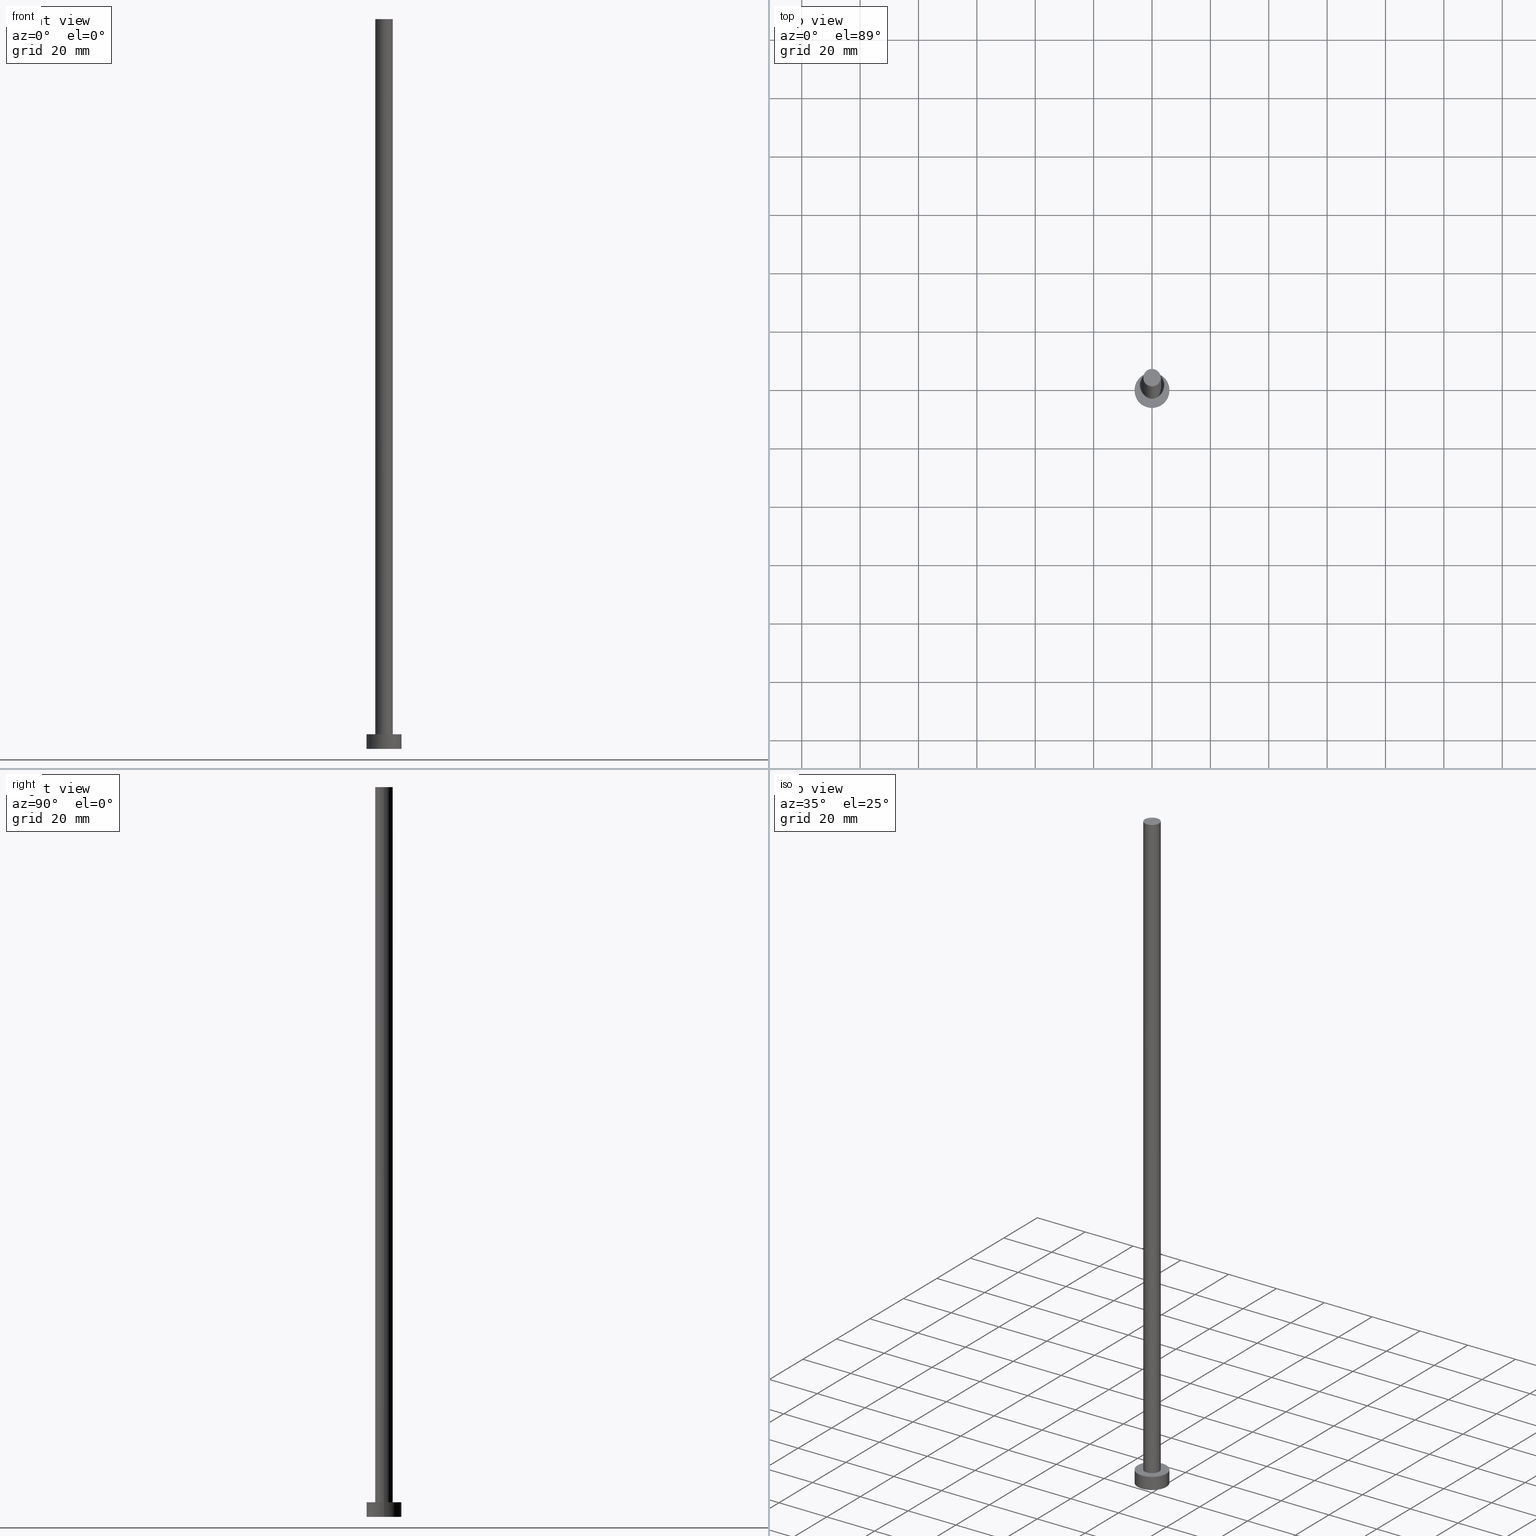
[diagram: canonical four-view strip — front | top / right | iso, engineering-drawing reading convention]
A machine part, canonical four-view strip (front | top / right | iso — engineering-drawing reading convention). The complete STEP part file that produces these views, byte-faithful:
ISO-10303-21;
HEADER;
FILE_DESCRIPTION (( 'STEP AP203' ),
    '1' );
FILE_NAME ('5daa.STEP',
    '2023-02-13T15:22:04',
    ( '' ),
    ( '' ),
    'SwSTEP 2.0',
    'SolidWorks 2019',
    '' );
FILE_SCHEMA (( 'CONFIG_CONTROL_DESIGN' ));
ENDSEC;

DATA;
#1 = EDGE_CURVE ( 'NONE', #52, #58, #91, .T. ) ;
#2 = ORIENTED_EDGE ( 'NONE', *, *, #105, .T. ) ;
#3 = VECTOR ( 'NONE', #83, 1000.000000000000000 ) ;
#4 = PERSON_AND_ORGANIZATION ( #132, #229 ) ;
#5 = ORIENTED_EDGE ( 'NONE', *, *, #234, .F. ) ;
#6 = ORIENTED_EDGE ( 'NONE', *, *, #192, .F. ) ;
#7 = PLANE ( 'NONE',  #184 ) ;
#8 = CARTESIAN_POINT ( 'NONE',  ( -6.000000000000000888, 0.000000000000000000, 5.000000000000000000 ) ) ;
#9 = CC_DESIGN_PERSON_AND_ORGANIZATION_ASSIGNMENT ( #215, #158, ( #211 ) ) ;
#10 = CARTESIAN_POINT ( 'NONE',  ( 0.000000000000000000, 0.000000000000000000, 5.000000000000000000 ) ) ;
#11 = DIRECTION ( 'NONE',  ( 1.000000000000000000, 0.000000000000000000, 0.000000000000000000 ) ) ;
#12 = DIRECTION ( 'NONE',  ( 0.000000000000000000, 0.000000000000000000, 1.000000000000000000 ) ) ;
#13 = ADVANCED_FACE ( 'NONE', ( #182 ), #221, .T. ) ;
#14 = EDGE_CURVE ( 'NONE', #214, #237, #124, .T. ) ;
#15 = DIRECTION ( 'NONE',  ( 1.000000000000000000, 0.000000000000000000, 0.000000000000000000 ) ) ;
#16 =( GEOMETRIC_REPRESENTATION_CONTEXT ( 3 ) GLOBAL_UNCERTAINTY_ASSIGNED_CONTEXT ( ( #168 ) ) GLOBAL_UNIT_ASSIGNED_CONTEXT ( ( #53, #194, #32 ) ) REPRESENTATION_CONTEXT ( 'NONE', 'WORKASPACE' ) );
#17 = ORIENTED_EDGE ( 'NONE', *, *, #110, .F. ) ;
#18 = DATE_TIME_ROLE ( 'classification_date' ) ;
#19 = EDGE_CURVE ( 'NONE', #138, #52, #185, .T. ) ;
#20 = ORIENTED_EDGE ( 'NONE', *, *, #203, .F. ) ;
#21 = APPROVAL_DATE_TIME ( #76, #216 ) ;
#22 = ORIENTED_EDGE ( 'NONE', *, *, #213, .F. ) ;
#23 = DATE_AND_TIME ( #102, #38 ) ;
#24 = ORIENTED_EDGE ( 'NONE', *, *, #14, .F. ) ;
#25 = COORDINATED_UNIVERSAL_TIME_OFFSET ( 1, 0, .AHEAD. ) ;
#26 = ORIENTED_EDGE ( 'NONE', *, *, #14, .T. ) ;
#27 = APPLICATION_CONTEXT ( 'configuration controlled 3d designs of mechanical parts and assemblies' ) ;
#28 = DIRECTION ( 'NONE',  ( -0.000000000000000000, -0.000000000000000000, -1.000000000000000000 ) ) ;
#29 = LINE ( 'NONE', #202, #247 ) ;
#30 = DIRECTION ( 'NONE',  ( 1.000000000000000000, 0.000000000000000000, 0.000000000000000000 ) ) ;
#31 = CC_DESIGN_APPROVAL ( #183, ( #226 ) ) ;
#32 =( NAMED_UNIT ( * ) SI_UNIT ( $, .STERADIAN. ) SOLID_ANGLE_UNIT ( ) );
#33 = CIRCLE ( 'NONE', #227, 3.000000000000000444 ) ;
#34 = DESIGN_CONTEXT ( 'detailed design', #27, 'design' ) ;
#35 = ADVANCED_FACE ( 'NONE', ( #64, #67 ), #7, .T. ) ;
#36 = PERSON_AND_ORGANIZATION_ROLE ( 'design_owner' ) ;
#37 = EDGE_LOOP ( 'NONE', ( #20, #43, #26, #153 ) ) ;
#38 = LOCAL_TIME ( 16, 22, 4.000000000000000000, #154 ) ;
#39 = ADVANCED_FACE ( 'NONE', ( #145 ), #107, .T. ) ;
#40 = EDGE_LOOP ( 'NONE', ( #235, #195 ) ) ;
#41 = PERSON_AND_ORGANIZATION ( #132, #229 ) ;
#42 = LOCAL_TIME ( 16, 22, 4.000000000000000000, #160 ) ;
#43 = ORIENTED_EDGE ( 'NONE', *, *, #241, .F. ) ;
#44 = VECTOR ( 'NONE', #109, 1000.000000000000000 ) ;
#45 = AXIS2_PLACEMENT_3D ( 'NONE', #131, #117, #11 ) ;
#46 = DIRECTION ( 'NONE',  ( 1.000000000000000000, 0.000000000000000000, 0.000000000000000000 ) ) ;
#47 = FACE_OUTER_BOUND ( 'NONE', #157, .T. ) ;
#48 = APPROVAL ( #198, 'NEUR�EN�' ) ;
#49 = LOCAL_TIME ( 16, 22, 4.000000000000000000, #254 ) ;
#50 = CARTESIAN_POINT ( 'NONE',  ( 0.000000000000000000, 0.000000000000000000, 250.0000000000000000 ) ) ;
#51 = CC_DESIGN_DATE_AND_TIME_ASSIGNMENT ( #197, #18, ( #166 ) ) ;
#52 = VERTEX_POINT ( 'NONE', #69 ) ;
#53 =( LENGTH_UNIT ( ) NAMED_UNIT ( * ) SI_UNIT ( .MILLI., .METRE. ) );
#54 = EDGE_LOOP ( 'NONE', ( #17, #6, #79, #82 ) ) ;
#55 = APPLICATION_CONTEXT ( 'configuration controlled 3d designs of mechanical parts and assemblies' ) ;
#56 = APPROVAL_ROLE ( '' ) ;
#57 = EDGE_CURVE ( 'NONE', #237, #231, #33, .T. ) ;
#58 = VERTEX_POINT ( 'NONE', #246 ) ;
#59 = CALENDAR_DATE ( 2023, 13, 2 ) ;
#60 = AXIS2_PLACEMENT_3D ( 'NONE', #126, #188, #30 ) ;
#61 = DIRECTION ( 'NONE',  ( 0.000000000000000000, 0.000000000000000000, 1.000000000000000000 ) ) ;
#62 = SECURITY_CLASSIFICATION_LEVEL ( 'unclassified' ) ;
#63 = DIRECTION ( 'NONE',  ( 0.000000000000000000, 0.000000000000000000, 1.000000000000000000 ) ) ;
#64 = FACE_BOUND ( 'NONE', #40, .T. ) ;
#65 = CARTESIAN_POINT ( 'NONE',  ( 3.000000000000000444, 3.673940397442060361E-16, 250.0000000000000000 ) ) ;
#66 = AXIS2_PLACEMENT_3D ( 'NONE', #170, #85, #225 ) ;
#67 = FACE_OUTER_BOUND ( 'NONE', #156, .T. ) ;
#68 = FACE_OUTER_BOUND ( 'NONE', #100, .T. ) ;
#69 = CARTESIAN_POINT ( 'NONE',  ( -6.000000000000000888, 0.000000000000000000, 0.000000000000000000 ) ) ;
#70 = DIRECTION ( 'NONE',  ( 0.000000000000000000, 0.000000000000000000, 1.000000000000000000 ) ) ;
#71 = AXIS2_PLACEMENT_3D ( 'NONE', #10, #12, #252 ) ;
#72 = CLOSED_SHELL ( 'NONE', ( #89, #152, #39, #35, #178, #13, #255 ) ) ;
#73 = ADVANCED_BREP_SHAPE_REPRESENTATION ( '5daa', ( #249, #199 ), #16 ) ;
#74 = CALENDAR_DATE ( 2023, 13, 2 ) ;
#75 = EDGE_LOOP ( 'NONE', ( #135, #133 ) ) ;
#76 = DATE_AND_TIME ( #59, #103 ) ;
#77 = ORIENTED_EDGE ( 'NONE', *, *, #192, .T. ) ;
#78 = VECTOR ( 'NONE', #248, 1000.000000000000000 ) ;
#79 = ORIENTED_EDGE ( 'NONE', *, *, #19, .T. ) ;
#80 = APPROVAL_DATE_TIME ( #96, #48 ) ;
#81 = ORIENTED_EDGE ( 'NONE', *, *, #19, .F. ) ;
#82 = ORIENTED_EDGE ( 'NONE', *, *, #1, .T. ) ;
#83 = DIRECTION ( 'NONE',  ( -0.000000000000000000, -0.000000000000000000, -1.000000000000000000 ) ) ;
#84 = DIRECTION ( 'NONE',  ( 1.000000000000000000, 0.000000000000000000, -0.000000000000000000 ) ) ;
#85 = DIRECTION ( 'NONE',  ( -0.000000000000000000, -0.000000000000000000, -1.000000000000000000 ) ) ;
#86 = AXIS2_PLACEMENT_3D ( 'NONE', #50, #232, #208 ) ;
#87 = CARTESIAN_POINT ( 'NONE',  ( 0.000000000000000000, 0.000000000000000000, 5.000000000000000000 ) ) ;
#88 = DIRECTION ( 'NONE',  ( 0.000000000000000000, 0.000000000000000000, 1.000000000000000000 ) ) ;
#89 = ADVANCED_FACE ( 'NONE', ( #47 ), #250, .T. ) ;
#90 = APPLICATION_PROTOCOL_DEFINITION ( 'international standard', 'config_control_design', 1994, #27 ) ;
#91 = CIRCLE ( 'NONE', #45, 6.000000000000000888 ) ;
#92 = DIRECTION ( 'NONE',  ( 0.000000000000000000, 0.000000000000000000, 1.000000000000000000 ) ) ;
#93 = CIRCLE ( 'NONE', #218, 3.000000000000000444 ) ;
#94 = SHAPE_DEFINITION_REPRESENTATION ( #173, #73 ) ;
#95 = ORIENTED_EDGE ( 'NONE', *, *, #213, .T. ) ;
#96 = DATE_AND_TIME ( #136, #155 ) ;
#97 = CC_DESIGN_DATE_AND_TIME_ASSIGNMENT ( #23, #98, ( #226 ) ) ;
#98 = DATE_TIME_ROLE ( 'creation_date' ) ;
#99 = AXIS2_PLACEMENT_3D ( 'NONE', #164, #125, #46 ) ;
#100 = EDGE_LOOP ( 'NONE', ( #5, #119, #2, #81 ) ) ;
#101 = VERTEX_POINT ( 'NONE', #190 ) ;
#102 = CALENDAR_DATE ( 2023, 13, 2 ) ;
#103 = LOCAL_TIME ( 16, 22, 4.000000000000000000, #25 ) ;
#104 = DIRECTION ( 'NONE',  ( -0.000000000000000000, -0.000000000000000000, -1.000000000000000000 ) ) ;
#105 = EDGE_CURVE ( 'NONE', #58, #52, #207, .T. ) ;
#106 = DIRECTION ( 'NONE',  ( -0.000000000000000000, -0.000000000000000000, -1.000000000000000000 ) ) ;
#107 = CYLINDRICAL_SURFACE ( 'NONE', #177, 6.000000000000000888 ) ;
#108 = LINE ( 'NONE', #65, #44 ) ;
#109 = DIRECTION ( 'NONE',  ( -0.000000000000000000, -0.000000000000000000, -1.000000000000000000 ) ) ;
#110 = EDGE_CURVE ( 'NONE', #101, #58, #29, .T. ) ;
#111 = CIRCLE ( 'NONE', #86, 3.000000000000000444 ) ;
#112 = CARTESIAN_POINT ( 'NONE',  ( 0.000000000000000000, 0.000000000000000000, 250.0000000000000000 ) ) ;
#113 = CC_DESIGN_PERSON_AND_ORGANIZATION_ASSIGNMENT ( #172, #36, ( #206 ) ) ;
#114 = APPROVAL_STATUS ( 'not_yet_approved' ) ;
#115 = CC_DESIGN_SECURITY_CLASSIFICATION ( #166, ( #211 ) ) ;
#116 = FACE_OUTER_BOUND ( 'NONE', #179, .T. ) ;
#117 = DIRECTION ( 'NONE',  ( 0.000000000000000000, 0.000000000000000000, 1.000000000000000000 ) ) ;
#118 = PERSON_AND_ORGANIZATION_ROLE ( 'creator' ) ;
#119 = ORIENTED_EDGE ( 'NONE', *, *, #110, .T. ) ;
#120 = PERSON_AND_ORGANIZATION ( #132, #229 ) ;
#121 = PERSON_AND_ORGANIZATION_ROLE ( 'design_supplier' ) ;
#122 = DIRECTION ( 'NONE',  ( 1.000000000000000000, 0.000000000000000000, 0.000000000000000000 ) ) ;
#123 = CARTESIAN_POINT ( 'NONE',  ( -6.000000000000000888, 0.000000000000000000, 5.000000000000000000 ) ) ;
#124 = LINE ( 'NONE', #169, #78 ) ;
#125 = DIRECTION ( 'NONE',  ( 0.000000000000000000, 0.000000000000000000, 1.000000000000000000 ) ) ;
#126 = CARTESIAN_POINT ( 'NONE',  ( 0.000000000000000000, 0.000000000000000000, 5.000000000000000000 ) ) ;
#127 = FACE_OUTER_BOUND ( 'NONE', #75, .T. ) ;
#128 = CC_DESIGN_PERSON_AND_ORGANIZATION_ASSIGNMENT ( #41, #121, ( #211 ) ) ;
#129 = PLANE ( 'NONE',  #240 ) ;
#130 = APPROVAL_PERSON_ORGANIZATION ( #4, #48, #56 ) ;
#131 = CARTESIAN_POINT ( 'NONE',  ( 0.000000000000000000, 0.000000000000000000, 0.000000000000000000 ) ) ;
#132 = PERSON ( 'NEUR�EN�', 'NEUR�EN�', 'NEUR�EN�', ('NEUR�EN�'), ('NEUR�EN�'), ('NEUR�EN�') ) ;
#133 = ORIENTED_EDGE ( 'NONE', *, *, #105, .F. ) ;
#134 = PERSON_AND_ORGANIZATION ( #132, #229 ) ;
#135 = ORIENTED_EDGE ( 'NONE', *, *, #1, .F. ) ;
#136 = CALENDAR_DATE ( 2023, 13, 2 ) ;
#137 = CC_DESIGN_PERSON_AND_ORGANIZATION_ASSIGNMENT ( #134, #196, ( #166 ) ) ;
#138 = VERTEX_POINT ( 'NONE', #123 ) ;
#139 = CARTESIAN_POINT ( 'NONE',  ( 0.000000000000000000, 0.000000000000000000, 5.000000000000000000 ) ) ;
#140 = CC_DESIGN_PERSON_AND_ORGANIZATION_ASSIGNMENT ( #120, #118, ( #226 ) ) ;
#141 = DIRECTION ( 'NONE',  ( 1.000000000000000000, 0.000000000000000000, -0.000000000000000000 ) ) ;
#142 = AXIS2_PLACEMENT_3D ( 'NONE', #139, #217, #122 ) ;
#143 = CARTESIAN_POINT ( 'NONE',  ( 0.000000000000000000, 0.000000000000000000, 250.0000000000000000 ) ) ;
#144 = CARTESIAN_POINT ( 'NONE',  ( 0.000000000000000000, 0.000000000000000000, 0.000000000000000000 ) ) ;
#145 = FACE_OUTER_BOUND ( 'NONE', #54, .T. ) ;
#146 = CYLINDRICAL_SURFACE ( 'NONE', #147, 6.000000000000000888 ) ;
#147 = AXIS2_PLACEMENT_3D ( 'NONE', #243, #104, #222 ) ;
#148 = CARTESIAN_POINT ( 'NONE',  ( 0.000000000000000000, 0.000000000000000000, 5.000000000000000000 ) ) ;
#149 = CARTESIAN_POINT ( 'NONE',  ( 0.000000000000000000, 0.000000000000000000, 0.000000000000000000 ) ) ;
#150 = DIRECTION ( 'NONE',  ( 0.000000000000000000, 0.000000000000000000, 1.000000000000000000 ) ) ;
#151 = MECHANICAL_CONTEXT ( 'NONE', #55, 'mechanical' ) ;
#152 = ADVANCED_FACE ( 'NONE', ( #68 ), #146, .T. ) ;
#153 = ORIENTED_EDGE ( 'NONE', *, *, #57, .T. ) ;
#154 = COORDINATED_UNIVERSAL_TIME_OFFSET ( 1, 0, .AHEAD. ) ;
#155 = LOCAL_TIME ( 16, 22, 4.000000000000000000, #242 ) ;
#156 = EDGE_LOOP ( 'NONE', ( #77, #201 ) ) ;
#157 = EDGE_LOOP ( 'NONE', ( #22, #233, #238, #24 ) ) ;
#158 = PERSON_AND_ORGANIZATION_ROLE ( 'creator' ) ;
#159 = VERTEX_POINT ( 'NONE', #167 ) ;
#160 = COORDINATED_UNIVERSAL_TIME_OFFSET ( 1, 0, .AHEAD. ) ;
#161 = CARTESIAN_POINT ( 'NONE',  ( 0.000000000000000000, 0.000000000000000000, 5.000000000000000000 ) ) ;
#162 = CC_DESIGN_APPROVAL ( #48, ( #211 ) ) ;
#163 = AXIS2_PLACEMENT_3D ( 'NONE', #144, #70, #84 ) ;
#164 = CARTESIAN_POINT ( 'NONE',  ( 0.000000000000000000, 0.000000000000000000, 0.000000000000000000 ) ) ;
#165 = DIRECTION ( 'NONE',  ( -1.000000000000000000, 0.000000000000000000, 0.000000000000000000 ) ) ;
#166 = SECURITY_CLASSIFICATION ( '', '', #62 ) ;
#167 = CARTESIAN_POINT ( 'NONE',  ( 3.000000000000000444, 3.673940397442060361E-16, 250.0000000000000000 ) ) ;
#168 = UNCERTAINTY_MEASURE_WITH_UNIT (LENGTH_MEASURE( 1.000000000000000082E-05 ), #53, 'distance_accuracy_value', 'NONE');
#169 = CARTESIAN_POINT ( 'NONE',  ( -3.000000000000000444, 0.000000000000000000, 250.0000000000000000 ) ) ;
#170 = CARTESIAN_POINT ( 'NONE',  ( 0.000000000000000000, 0.000000000000000000, 250.0000000000000000 ) ) ;
#171 = PERSON_AND_ORGANIZATION ( #132, #229 ) ;
#172 = PERSON_AND_ORGANIZATION ( #132, #229 ) ;
#173 = PRODUCT_DEFINITION_SHAPE ( 'NONE', 'NONE',  #226 ) ;
#174 = APPLICATION_PROTOCOL_DEFINITION ( 'international standard', 'config_control_design', 1994, #55 ) ;
#175 = APPROVAL_ROLE ( '' ) ;
#176 = APPROVAL_DATE_TIME ( #210, #183 ) ;
#177 = AXIS2_PLACEMENT_3D ( 'NONE', #148, #223, #251 ) ;
#178 = ADVANCED_FACE ( 'NONE', ( #127 ), #186, .F. ) ;
#179 = EDGE_LOOP ( 'NONE', ( #212, #95 ) ) ;
#180 = CALENDAR_DATE ( 2023, 13, 2 ) ;
#181 = APPROVAL_STATUS ( 'not_yet_approved' ) ;
#182 = FACE_OUTER_BOUND ( 'NONE', #37, .T. ) ;
#183 = APPROVAL ( #114, 'NEUR�EN�' ) ;
#184 = AXIS2_PLACEMENT_3D ( 'NONE', #161, #61, #141 ) ;
#185 = LINE ( 'NONE', #8, #3 ) ;
#186 = PLANE ( 'NONE',  #163 ) ;
#187 = CARTESIAN_POINT ( 'NONE',  ( 3.000000000000000444, 3.673940397442060361E-16, 5.000000000000000000 ) ) ;
#188 = DIRECTION ( 'NONE',  ( 0.000000000000000000, 0.000000000000000000, 1.000000000000000000 ) ) ;
#189 = CARTESIAN_POINT ( 'NONE',  ( -3.000000000000000444, 0.000000000000000000, 250.0000000000000000 ) ) ;
#190 = CARTESIAN_POINT ( 'NONE',  ( 6.000000000000000888, 7.347880794884120722E-16, 5.000000000000000000 ) ) ;
#191 = CIRCLE ( 'NONE', #142, 3.000000000000000444 ) ;
#192 = EDGE_CURVE ( 'NONE', #138, #101, #205, .T. ) ;
#193 = AXIS2_PLACEMENT_3D ( 'NONE', #245, #28, #165 ) ;
#194 =( NAMED_UNIT ( * ) PLANE_ANGLE_UNIT ( ) SI_UNIT ( $, .RADIAN. ) );
#195 = ORIENTED_EDGE ( 'NONE', *, *, #236, .F. ) ;
#196 = PERSON_AND_ORGANIZATION_ROLE ( 'classification_officer' ) ;
#197 = DATE_AND_TIME ( #180, #42 ) ;
#198 = APPROVAL_STATUS ( 'not_yet_approved' ) ;
#199 = AXIS2_PLACEMENT_3D ( 'NONE', #149, #150, #15 ) ;
#200 = PERSON_AND_ORGANIZATION ( #132, #229 ) ;
#201 = ORIENTED_EDGE ( 'NONE', *, *, #234, .T. ) ;
#202 = CARTESIAN_POINT ( 'NONE',  ( 6.000000000000000888, 7.347880794884120722E-16, 5.000000000000000000 ) ) ;
#203 = EDGE_CURVE ( 'NONE', #159, #231, #108, .T. ) ;
#204 = APPROVAL_PERSON_ORGANIZATION ( #200, #216, #239 ) ;
#205 = CIRCLE ( 'NONE', #60, 6.000000000000000888 ) ;
#206 = PRODUCT ( '5daa', '5daa', '', ( #151 ) ) ;
#207 = CIRCLE ( 'NONE', #99, 6.000000000000000888 ) ;
#208 = DIRECTION ( 'NONE',  ( 1.000000000000000000, 0.000000000000000000, 0.000000000000000000 ) ) ;
#209 = DIRECTION ( 'NONE',  ( 1.000000000000000000, 0.000000000000000000, -0.000000000000000000 ) ) ;
#210 = DATE_AND_TIME ( #74, #49 ) ;
#211 = PRODUCT_DEFINITION_FORMATION_WITH_SPECIFIED_SOURCE ( 'LIBOVOLN�', '', #206, .NOT_KNOWN. ) ;
#212 = ORIENTED_EDGE ( 'NONE', *, *, #241, .T. ) ;
#213 = EDGE_CURVE ( 'NONE', #159, #214, #93, .T. ) ;
#214 = VERTEX_POINT ( 'NONE', #189 ) ;
#215 = PERSON_AND_ORGANIZATION ( #132, #229 ) ;
#216 = APPROVAL ( #181, 'NEUR�EN�' ) ;
#217 = DIRECTION ( 'NONE',  ( 0.000000000000000000, 0.000000000000000000, 1.000000000000000000 ) ) ;
#218 = AXIS2_PLACEMENT_3D ( 'NONE', #143, #63, #219 ) ;
#219 = DIRECTION ( 'NONE',  ( 1.000000000000000000, 0.000000000000000000, 0.000000000000000000 ) ) ;
#220 = DIRECTION ( 'NONE',  ( 1.000000000000000000, 0.000000000000000000, 0.000000000000000000 ) ) ;
#221 = CYLINDRICAL_SURFACE ( 'NONE', #193, 3.000000000000000444 ) ;
#222 = DIRECTION ( 'NONE',  ( -1.000000000000000000, 0.000000000000000000, 0.000000000000000000 ) ) ;
#223 = DIRECTION ( 'NONE',  ( -0.000000000000000000, -0.000000000000000000, -1.000000000000000000 ) ) ;
#224 = CC_DESIGN_APPROVAL ( #216, ( #166 ) ) ;
#225 = DIRECTION ( 'NONE',  ( -1.000000000000000000, 0.000000000000000000, 0.000000000000000000 ) ) ;
#226 = PRODUCT_DEFINITION ( 'NEZN�M�', '', #211, #34 ) ;
#227 = AXIS2_PLACEMENT_3D ( 'NONE', #87, #88, #220 ) ;
#228 = CARTESIAN_POINT ( 'NONE',  ( -3.000000000000000444, 0.000000000000000000, 5.000000000000000000 ) ) ;
#229 = ORGANIZATION ( 'NEUR�EN�', 'NEUR�EN�', '' ) ;
#230 = PRODUCT_RELATED_PRODUCT_CATEGORY ( 'detail', '', ( #206 ) ) ;
#231 = VERTEX_POINT ( 'NONE', #187 ) ;
#232 = DIRECTION ( 'NONE',  ( 0.000000000000000000, 0.000000000000000000, 1.000000000000000000 ) ) ;
#233 = ORIENTED_EDGE ( 'NONE', *, *, #203, .T. ) ;
#234 = EDGE_CURVE ( 'NONE', #101, #138, #253, .T. ) ;
#235 = ORIENTED_EDGE ( 'NONE', *, *, #57, .F. ) ;
#236 = EDGE_CURVE ( 'NONE', #231, #237, #191, .T. ) ;
#237 = VERTEX_POINT ( 'NONE', #228 ) ;
#238 = ORIENTED_EDGE ( 'NONE', *, *, #236, .T. ) ;
#239 = APPROVAL_ROLE ( '' ) ;
#240 = AXIS2_PLACEMENT_3D ( 'NONE', #112, #92, #209 ) ;
#241 = EDGE_CURVE ( 'NONE', #214, #159, #111, .T. ) ;
#242 = COORDINATED_UNIVERSAL_TIME_OFFSET ( 1, 0, .AHEAD. ) ;
#243 = CARTESIAN_POINT ( 'NONE',  ( 0.000000000000000000, 0.000000000000000000, 5.000000000000000000 ) ) ;
#244 = APPROVAL_PERSON_ORGANIZATION ( #171, #183, #175 ) ;
#245 = CARTESIAN_POINT ( 'NONE',  ( 0.000000000000000000, 0.000000000000000000, 250.0000000000000000 ) ) ;
#246 = CARTESIAN_POINT ( 'NONE',  ( 6.000000000000000888, 7.347880794884120722E-16, 0.000000000000000000 ) ) ;
#247 = VECTOR ( 'NONE', #106, 1000.000000000000000 ) ;
#248 = DIRECTION ( 'NONE',  ( -0.000000000000000000, -0.000000000000000000, -1.000000000000000000 ) ) ;
#249 = MANIFOLD_SOLID_BREP ( 'P�idat vysunut�m3', #72 ) ;
#250 = CYLINDRICAL_SURFACE ( 'NONE', #66, 3.000000000000000444 ) ;
#251 = DIRECTION ( 'NONE',  ( -1.000000000000000000, 0.000000000000000000, 0.000000000000000000 ) ) ;
#252 = DIRECTION ( 'NONE',  ( 1.000000000000000000, 0.000000000000000000, 0.000000000000000000 ) ) ;
#253 = CIRCLE ( 'NONE', #71, 6.000000000000000888 ) ;
#254 = COORDINATED_UNIVERSAL_TIME_OFFSET ( 1, 0, .AHEAD. ) ;
#255 = ADVANCED_FACE ( 'NONE', ( #116 ), #129, .T. ) ;
ENDSEC;
END-ISO-10303-21;
